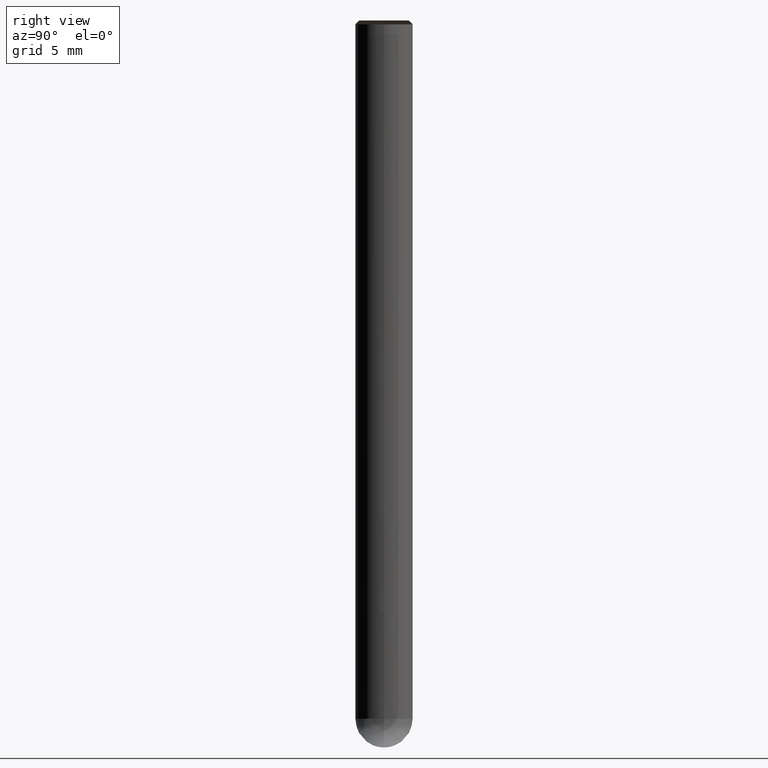
[diagram: clean part render]
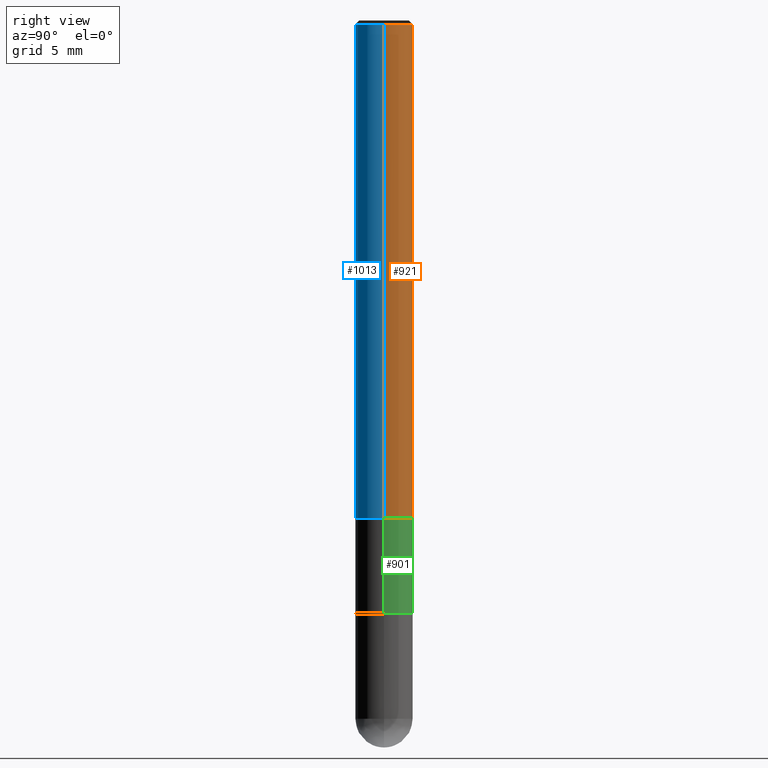
[diagram: same view with three faces highlighted in distinct colors, each labeled with its STEP entity id]
A machine part, right view with three faces highlighted in distinct colors.
Their STEP definitions:

[orange] entity #921 — the highlighted face is a freeform B-spline surface patch.
#726=CARTESIAN_POINT('',(1.5,0.0,0.0));
#727=CARTESIAN_POINT('',(1.5,1.5,0.0));
#728=CARTESIAN_POINT('',(0.0,1.5,0.0));
#729=CARTESIAN_POINT('',(-1.5,1.5,0.0));
#730=CARTESIAN_POINT('',(-1.5,0.0,0.0));
#731=CARTESIAN_POINT('',(1.5,0.0,25.8));
#732=CARTESIAN_POINT('',(1.5,1.5,25.8));
#733=CARTESIAN_POINT('',(0.0,1.5,25.8));
#734=CARTESIAN_POINT('',(-1.5,1.5,25.8));
#735=CARTESIAN_POINT('',(-1.5,0.0,25.8));
#902=(
BOUNDED_SURFACE()
B_SPLINE_SURFACE(1,2,(
(#726,#727,#728,#729,#730),
(#731,#732,#733,#734,#735)
), .UNSPECIFIED.,.F.,.F.,.F.)
B_SPLINE_SURFACE_WITH_KNOTS((2,2),(3,2,3),(
0.0,1.0),(
0.0,0.5,1.0), .UNSPECIFIED.)
GEOMETRIC_REPRESENTATION_ITEM()
RATIONAL_B_SPLINE_SURFACE(((1.0,0.707106781187,1.0,0.707106781187,1.0),
(1.0,0.707106781187,1.0,0.707106781187,1.0)
))
REPRESENTATION_ITEM('')
SURFACE()
);
#903=(
BOUNDED_CURVE()
B_SPLINE_CURVE(2,(#730,#729,#728,#727,#726),.UNSPECIFIED.,.F.,.F.)
B_SPLINE_CURVE_WITH_KNOTS((3,2,3),
(0.0,0.5,1.0),.UNSPECIFIED.)
CURVE()
GEOMETRIC_REPRESENTATION_ITEM()
RATIONAL_B_SPLINE_CURVE((1.0,0.707106781187,1.0,0.707106781187,1.0))
REPRESENTATION_ITEM('')
);
#904=(
BOUNDED_CURVE()
B_SPLINE_CURVE(1,(#726,#731),.UNSPECIFIED.,.F.,.F.)
B_SPLINE_CURVE_WITH_KNOTS((2,2),
(0.0,1.0),.UNSPECIFIED.)
CURVE()
GEOMETRIC_REPRESENTATION_ITEM()
RATIONAL_B_SPLINE_CURVE((1.0,1.0))
REPRESENTATION_ITEM('')
);
#905=(
BOUNDED_CURVE()
B_SPLINE_CURVE(2,(#731,#732,#733,#734,#735),.UNSPECIFIED.,.F.,.F.)
B_SPLINE_CURVE_WITH_KNOTS((3,2,3),
(0.0,0.5,1.0),.UNSPECIFIED.)
CURVE()
GEOMETRIC_REPRESENTATION_ITEM()
RATIONAL_B_SPLINE_CURVE((1.0,0.707106781187,1.0,0.707106781187,1.0))
REPRESENTATION_ITEM('')
);
#906=(
BOUNDED_CURVE()
B_SPLINE_CURVE(1,(#735,#730),.UNSPECIFIED.,.F.,.F.)
B_SPLINE_CURVE_WITH_KNOTS((2,2),
(0.0,1.0),.UNSPECIFIED.)
CURVE()
GEOMETRIC_REPRESENTATION_ITEM()
RATIONAL_B_SPLINE_CURVE((1.0,1.0))
REPRESENTATION_ITEM('')
);
#907=VERTEX_POINT('',#726);
#908=VERTEX_POINT('',#730);
#909=VERTEX_POINT('',#731);
#910=VERTEX_POINT('',#735);
#911=EDGE_CURVE('',#908,#907,#903,.T.);
#912=EDGE_CURVE('',#907,#909,#904,.T.);
#913=EDGE_CURVE('',#909,#910,#905,.T.);
#914=EDGE_CURVE('',#910,#908,#906,.T.);
#915=ORIENTED_EDGE('',*,*,#911,.T.);
#916=ORIENTED_EDGE('',*,*,#912,.T.);
#917=ORIENTED_EDGE('',*,*,#913,.T.);
#918=ORIENTED_EDGE('',*,*,#914,.T.);
#919=EDGE_LOOP('',(#915,#916,#917,#918));
#920=FACE_OUTER_BOUND('',#919,.T.);
#921=ADVANCED_FACE('',(#920),#902,.T.);

[blue] entity #1013 — the highlighted face is a freeform B-spline surface patch.
#726=CARTESIAN_POINT('',(1.5,0.0,0.0));
#730=CARTESIAN_POINT('',(-1.5,0.0,0.0));
#731=CARTESIAN_POINT('',(1.5,0.0,25.8));
#735=CARTESIAN_POINT('',(-1.5,0.0,25.8));
#742=CARTESIAN_POINT('',(-1.5,-1.5,0.0));
#743=CARTESIAN_POINT('',(0.0,-1.5,0.0));
#744=CARTESIAN_POINT('',(1.5,-1.5,0.0));
#745=CARTESIAN_POINT('',(-1.5,-1.5,25.8));
#746=CARTESIAN_POINT('',(0.0,-1.5,25.8));
#747=CARTESIAN_POINT('',(1.5,-1.5,25.8));
#994=(
BOUNDED_SURFACE()
B_SPLINE_SURFACE(1,2,(
(#730,#742,#743,#744,#726),
(#735,#745,#746,#747,#731)
), .UNSPECIFIED.,.F.,.F.,.F.)
B_SPLINE_SURFACE_WITH_KNOTS((2,2),(3,2,3),(
0.0,1.0),(
0.0,0.5,1.0), .UNSPECIFIED.)
GEOMETRIC_REPRESENTATION_ITEM()
RATIONAL_B_SPLINE_SURFACE(((1.0,0.707106781187,1.0,0.707106781187,1.0),
(1.0,0.707106781187,1.0,0.707106781187,1.0)
))
REPRESENTATION_ITEM('')
SURFACE()
);
#995=(
BOUNDED_CURVE()
B_SPLINE_CURVE(2,(#726,#744,#743,#742,#730),.UNSPECIFIED.,.F.,.F.)
B_SPLINE_CURVE_WITH_KNOTS((3,2,3),
(0.0,0.5,1.0),.UNSPECIFIED.)
CURVE()
GEOMETRIC_REPRESENTATION_ITEM()
RATIONAL_B_SPLINE_CURVE((1.0,0.707106781187,1.0,0.707106781187,1.0))
REPRESENTATION_ITEM('')
);
#996=(
BOUNDED_CURVE()
B_SPLINE_CURVE(1,(#730,#735),.UNSPECIFIED.,.F.,.F.)
B_SPLINE_CURVE_WITH_KNOTS((2,2),
(0.0,1.0),.UNSPECIFIED.)
CURVE()
GEOMETRIC_REPRESENTATION_ITEM()
RATIONAL_B_SPLINE_CURVE((1.0,1.0))
REPRESENTATION_ITEM('')
);
#997=(
BOUNDED_CURVE()
B_SPLINE_CURVE(2,(#735,#745,#746,#747,#731),.UNSPECIFIED.,.F.,.F.)
B_SPLINE_CURVE_WITH_KNOTS((3,2,3),
(0.0,0.5,1.0),.UNSPECIFIED.)
CURVE()
GEOMETRIC_REPRESENTATION_ITEM()
RATIONAL_B_SPLINE_CURVE((1.0,0.707106781187,1.0,0.707106781187,1.0))
REPRESENTATION_ITEM('')
);
#998=(
BOUNDED_CURVE()
B_SPLINE_CURVE(1,(#731,#726),.UNSPECIFIED.,.F.,.F.)
B_SPLINE_CURVE_WITH_KNOTS((2,2),
(0.0,1.0),.UNSPECIFIED.)
CURVE()
GEOMETRIC_REPRESENTATION_ITEM()
RATIONAL_B_SPLINE_CURVE((1.0,1.0))
REPRESENTATION_ITEM('')
);
#999=VERTEX_POINT('',#726);
#1000=VERTEX_POINT('',#730);
#1001=VERTEX_POINT('',#731);
#1002=VERTEX_POINT('',#735);
#1003=EDGE_CURVE('',#999,#1000,#995,.T.);
#1004=EDGE_CURVE('',#1000,#1002,#996,.T.);
#1005=EDGE_CURVE('',#1002,#1001,#997,.T.);
#1006=EDGE_CURVE('',#1001,#999,#998,.T.);
#1007=ORIENTED_EDGE('',*,*,#1003,.T.);
#1008=ORIENTED_EDGE('',*,*,#1004,.T.);
#1009=ORIENTED_EDGE('',*,*,#1005,.T.);
#1010=ORIENTED_EDGE('',*,*,#1006,.T.);
#1011=EDGE_LOOP('',(#1007,#1008,#1009,#1010));
#1012=FACE_OUTER_BOUND('',#1011,.T.);
#1013=ADVANCED_FACE('',(#1012),#994,.T.);

[green] entity #901 — the highlighted face is a freeform B-spline surface patch.
#711=CARTESIAN_POINT('',(1.5,0.0,-5.0));
#712=CARTESIAN_POINT('',(1.5,1.5,-5.0));
#713=CARTESIAN_POINT('',(0.0,1.5,-5.0));
#714=CARTESIAN_POINT('',(-1.5,1.5,-5.0));
#715=CARTESIAN_POINT('',(-1.5,0.0,-5.0));
#726=CARTESIAN_POINT('',(1.5,0.0,0.0));
#727=CARTESIAN_POINT('',(1.5,1.5,0.0));
#728=CARTESIAN_POINT('',(0.0,1.5,0.0));
#729=CARTESIAN_POINT('',(-1.5,1.5,0.0));
#730=CARTESIAN_POINT('',(-1.5,0.0,0.0));
#882=(
BOUNDED_SURFACE()
B_SPLINE_SURFACE(1,2,(
(#711,#712,#713,#714,#715),
(#726,#727,#728,#729,#730)
), .UNSPECIFIED.,.F.,.F.,.F.)
B_SPLINE_SURFACE_WITH_KNOTS((2,2),(3,2,3),(
0.0,1.0),(
0.0,0.5,1.0), .UNSPECIFIED.)
GEOMETRIC_REPRESENTATION_ITEM()
RATIONAL_B_SPLINE_SURFACE(((1.0,0.707106781187,1.0,0.707106781187,1.0),
(1.0,0.707106781187,1.0,0.707106781187,1.0)
))
REPRESENTATION_ITEM('')
SURFACE()
);
#883=(
BOUNDED_CURVE()
B_SPLINE_CURVE(2,(#715,#714,#713,#712,#711),.UNSPECIFIED.,.F.,.F.)
B_SPLINE_CURVE_WITH_KNOTS((3,2,3),
(0.0,0.5,1.0),.UNSPECIFIED.)
CURVE()
GEOMETRIC_REPRESENTATION_ITEM()
RATIONAL_B_SPLINE_CURVE((1.0,0.707106781187,1.0,0.707106781187,1.0))
REPRESENTATION_ITEM('')
);
#884=(
BOUNDED_CURVE()
B_SPLINE_CURVE(1,(#711,#726),.UNSPECIFIED.,.F.,.F.)
B_SPLINE_CURVE_WITH_KNOTS((2,2),
(0.0,1.0),.UNSPECIFIED.)
CURVE()
GEOMETRIC_REPRESENTATION_ITEM()
RATIONAL_B_SPLINE_CURVE((1.0,1.0))
REPRESENTATION_ITEM('')
);
#885=(
BOUNDED_CURVE()
B_SPLINE_CURVE(2,(#726,#727,#728,#729,#730),.UNSPECIFIED.,.F.,.F.)
B_SPLINE_CURVE_WITH_KNOTS((3,2,3),
(0.0,0.5,1.0),.UNSPECIFIED.)
CURVE()
GEOMETRIC_REPRESENTATION_ITEM()
RATIONAL_B_SPLINE_CURVE((1.0,0.707106781187,1.0,0.707106781187,1.0))
REPRESENTATION_ITEM('')
);
#886=(
BOUNDED_CURVE()
B_SPLINE_CURVE(1,(#730,#715),.UNSPECIFIED.,.F.,.F.)
B_SPLINE_CURVE_WITH_KNOTS((2,2),
(0.0,1.0),.UNSPECIFIED.)
CURVE()
GEOMETRIC_REPRESENTATION_ITEM()
RATIONAL_B_SPLINE_CURVE((1.0,1.0))
REPRESENTATION_ITEM('')
);
#887=VERTEX_POINT('',#711);
#888=VERTEX_POINT('',#715);
#889=VERTEX_POINT('',#726);
#890=VERTEX_POINT('',#730);
#891=EDGE_CURVE('',#888,#887,#883,.T.);
#892=EDGE_CURVE('',#887,#889,#884,.T.);
#893=EDGE_CURVE('',#889,#890,#885,.T.);
#894=EDGE_CURVE('',#890,#888,#886,.T.);
#895=ORIENTED_EDGE('',*,*,#891,.T.);
#896=ORIENTED_EDGE('',*,*,#892,.T.);
#897=ORIENTED_EDGE('',*,*,#893,.T.);
#898=ORIENTED_EDGE('',*,*,#894,.T.);
#899=EDGE_LOOP('',(#895,#896,#897,#898));
#900=FACE_OUTER_BOUND('',#899,.T.);
#901=ADVANCED_FACE('',(#900),#882,.T.);